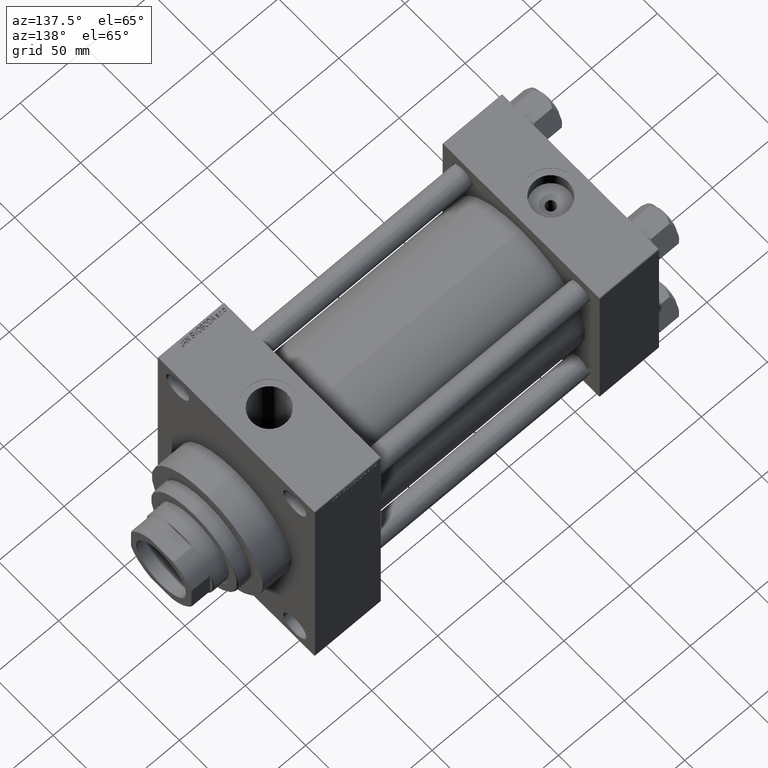
[diagram: clean part render]
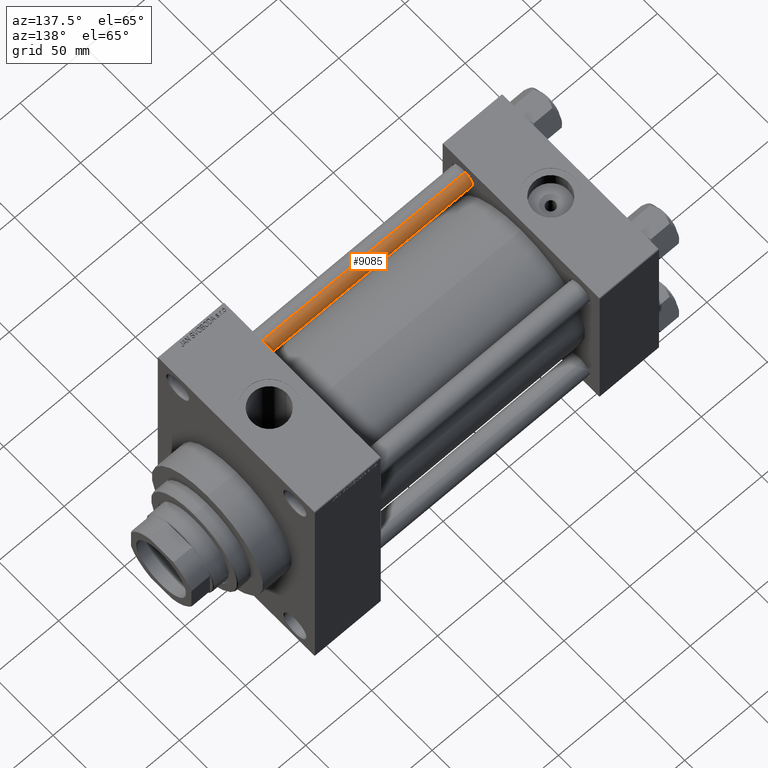
[diagram: same view with one face highlighted and labeled with its STEP entity id]
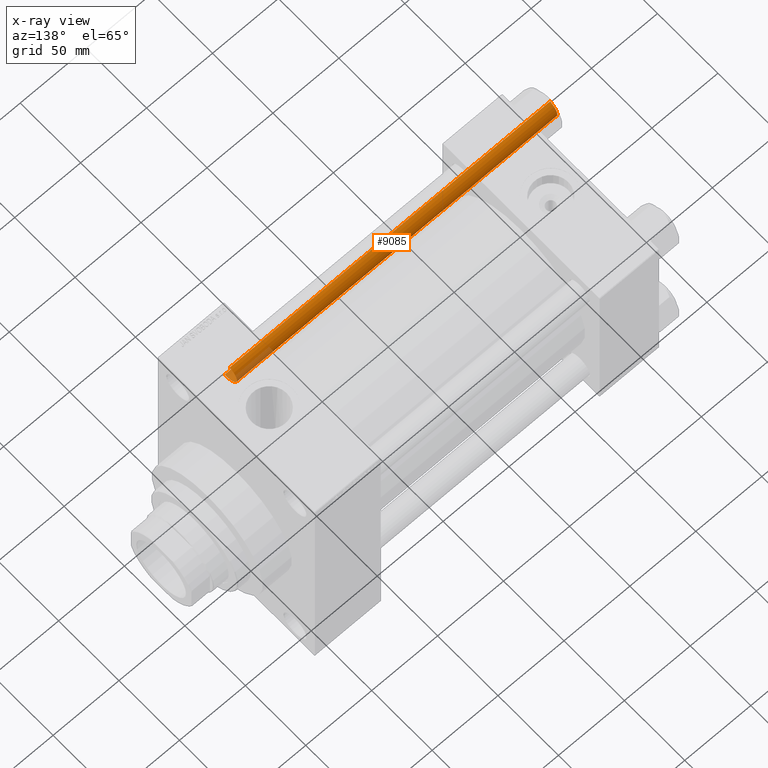
[diagram: x-ray of the same camera — body ghosted, the highlighted face saturated]
A machine part, auxiliary view. The second image highlights one B-rep face of the part: STEP entity #9085.
The next image is the same camera in x-ray: the body ghosted, the highlighted face saturated — about 5% of this face is hidden behind the body in this view.
In plain terms, the highlighted cylindrical surface (edge-blend (fillet) strip) has radius 8 mm, axis along (1, 0, 0).
Its self-contained STEP definition (entity closure, byte-faithful):
#261 = LINE ( 'NONE', #26582, #41164 ) ;
#730 = EDGE_CURVE ( 'NONE', #41807, #20914, #261, .T. ) ;
#1928 = DIRECTION ( 'NONE',  ( -0.000000000000000000, -0.000000000000000000, -1.000000000000000000 ) ) ;
#3253 = CYLINDRICAL_SURFACE ( 'NONE', #26772, 8.000000000000000000 ) ;
#4209 = FACE_OUTER_BOUND ( 'NONE', #26462, .T. ) ;
#5974 = CARTESIAN_POINT ( 'NONE',  ( 8.000000000000000000, 9.797174393178823685E-16, 0.5000000000001669775 ) ) ;
#6049 = AXIS2_PLACEMENT_3D ( 'NONE', #40707, #37809, #38039 ) ;
#6139 = DIRECTION ( 'NONE',  ( -0.000000000000000000, -0.000000000000000000, 1.000000000000000000 ) ) ;
#6369 = CIRCLE ( 'NONE', #39540, 8.000000000000000000 ) ;
#9085 = ADVANCED_FACE ( 'NONE', ( #4209 ), #3253, .T. ) ;
#11806 = EDGE_CURVE ( 'NONE', #41807, #45856, #14506, .T. ) ;
#14506 = CIRCLE ( 'NONE', #6049, 8.000000000000000000 ) ;
#17245 = DIRECTION ( 'NONE',  ( 1.000000000000000000, 0.000000000000000000, 0.000000000000000000 ) ) ;
#17998 = DIRECTION ( 'NONE',  ( -0.000000000000000000, -0.000000000000000000, -1.000000000000000000 ) ) ;
#18710 = DIRECTION ( 'NONE',  ( -1.000000000000000000, 0.000000000000000000, 0.000000000000000000 ) ) ;
#20294 = CARTESIAN_POINT ( 'NONE',  ( -8.000000000000000000, 0.000000000000000000, 244.0000000000000000 ) ) ;
#20591 = EDGE_CURVE ( 'NONE', #45856, #25780, #35971, .T. ) ;
#20914 = VERTEX_POINT ( 'NONE', #5974 ) ;
#21367 = ORIENTED_EDGE ( 'NONE', *, *, #20591, .T. ) ;
#23764 = ORIENTED_EDGE ( 'NONE', *, *, #730, .F. ) ;
#25780 = VERTEX_POINT ( 'NONE', #41716 ) ;
#26462 = EDGE_LOOP ( 'NONE', ( #23764, #32950, #21367, #27003 ) ) ;
#26582 = CARTESIAN_POINT ( 'NONE',  ( 8.000000000000000000, 9.797174393178823685E-16, 244.0000000000000000 ) ) ;
#26772 = AXIS2_PLACEMENT_3D ( 'NONE', #40438, #17998, #18710 ) ;
#27003 = ORIENTED_EDGE ( 'NONE', *, *, #44623, .T. ) ;
#31406 = CARTESIAN_POINT ( 'NONE',  ( -8.000000000000000000, 0.000000000000000000, 243.5000000000001421 ) ) ;
#32950 = ORIENTED_EDGE ( 'NONE', *, *, #11806, .T. ) ;
#35971 = LINE ( 'NONE', #20294, #37447 ) ;
#37447 = VECTOR ( 'NONE', #1928, 1000.000000000000000 ) ;
#37809 = DIRECTION ( 'NONE',  ( 0.000000000000000000, 0.000000000000000000, -1.000000000000000000 ) ) ;
#38039 = DIRECTION ( 'NONE',  ( 1.000000000000000000, 0.000000000000000000, 0.000000000000000000 ) ) ;
#39540 = AXIS2_PLACEMENT_3D ( 'NONE', #46467, #6139, #17245 ) ;
#40438 = CARTESIAN_POINT ( 'NONE',  ( 0.000000000000000000, 0.000000000000000000, 244.0000000000000000 ) ) ;
#40707 = CARTESIAN_POINT ( 'NONE',  ( 0.000000000000000000, 0.000000000000000000, 243.5000000000001421 ) ) ;
#41164 = VECTOR ( 'NONE', #41297, 1000.000000000000000 ) ;
#41297 = DIRECTION ( 'NONE',  ( -0.000000000000000000, -0.000000000000000000, -1.000000000000000000 ) ) ;
#41716 = CARTESIAN_POINT ( 'NONE',  ( -8.000000000000000000, 0.000000000000000000, 0.5000000000001669775 ) ) ;
#41807 = VERTEX_POINT ( 'NONE', #47546 ) ;
#44623 = EDGE_CURVE ( 'NONE', #25780, #20914, #6369, .T. ) ;
#45856 = VERTEX_POINT ( 'NONE', #31406 ) ;
#46467 = CARTESIAN_POINT ( 'NONE',  ( 0.000000000000000000, 0.000000000000000000, 0.5000000000001669775 ) ) ;
#47546 = CARTESIAN_POINT ( 'NONE',  ( 8.000000000000000000, 9.797174393178823685E-16, 243.5000000000001421 ) ) ;